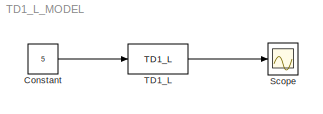
MODEL TD1_L_MODEL
KIND model
BLOCK [Constant] Constant
  SID = 5
  Value = 5
BLOCK [Scope] Scope
  DataFormat = StructureWithTime
  Floating = off
  NumInputPorts = 1
  Ports = [1]
  SID = 3
  SampleTime = 0
  TimeRange = 10
BLOCK [Reference] TD1_L  REF=ADRC/TD/TD1_L
  Ports = [1, 1]
  RisingTime = 5
  SID = 6
  SampleTime = 0.01
  SourceBlock = ADRC/TD/TD1_L
LINE Constant:1 -> TD1_L:1
LINE TD1_L:1 -> Scope:1
